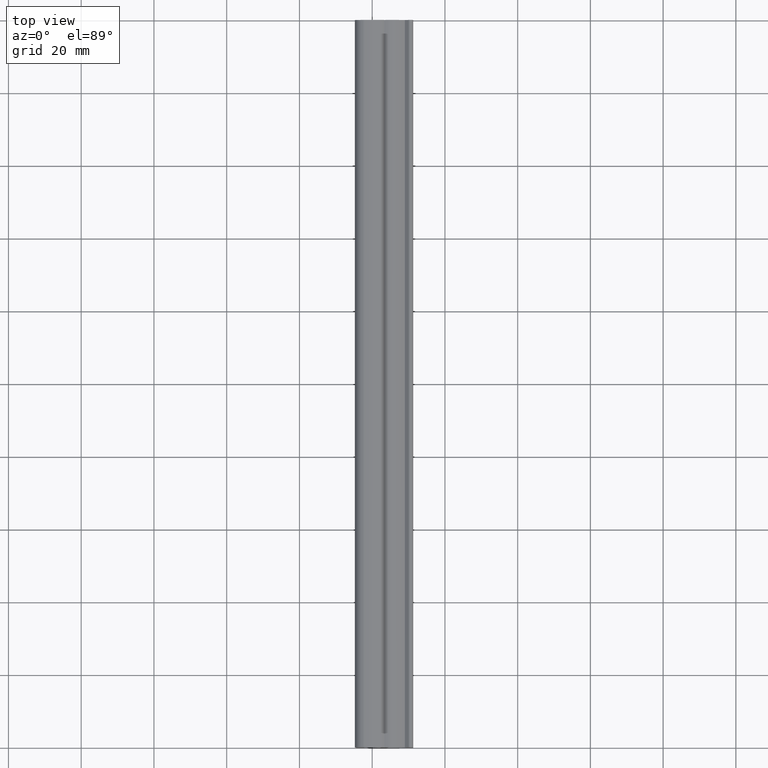
[diagram: clean part render]
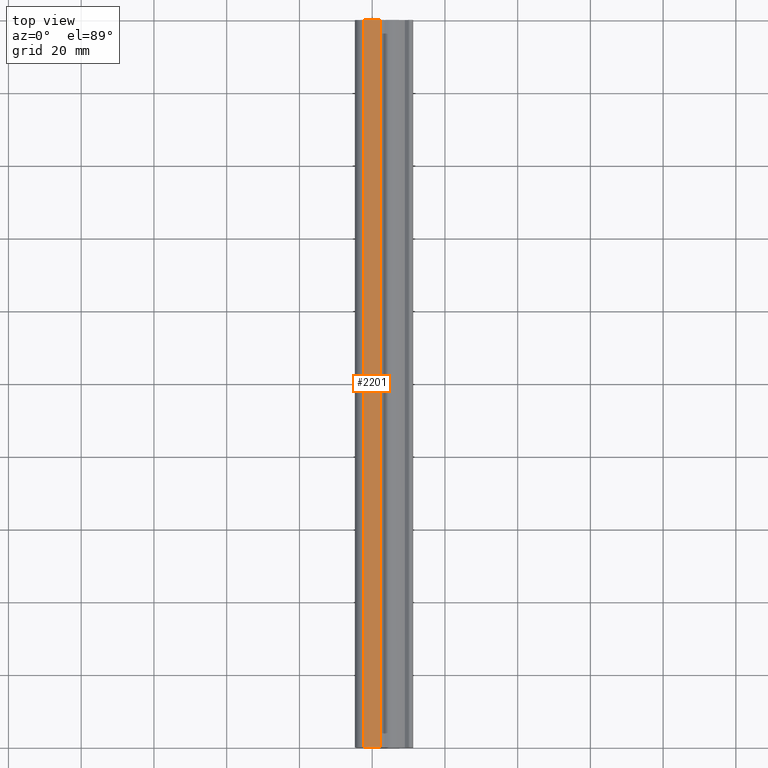
[diagram: same view with one face highlighted and labeled with its STEP entity id]
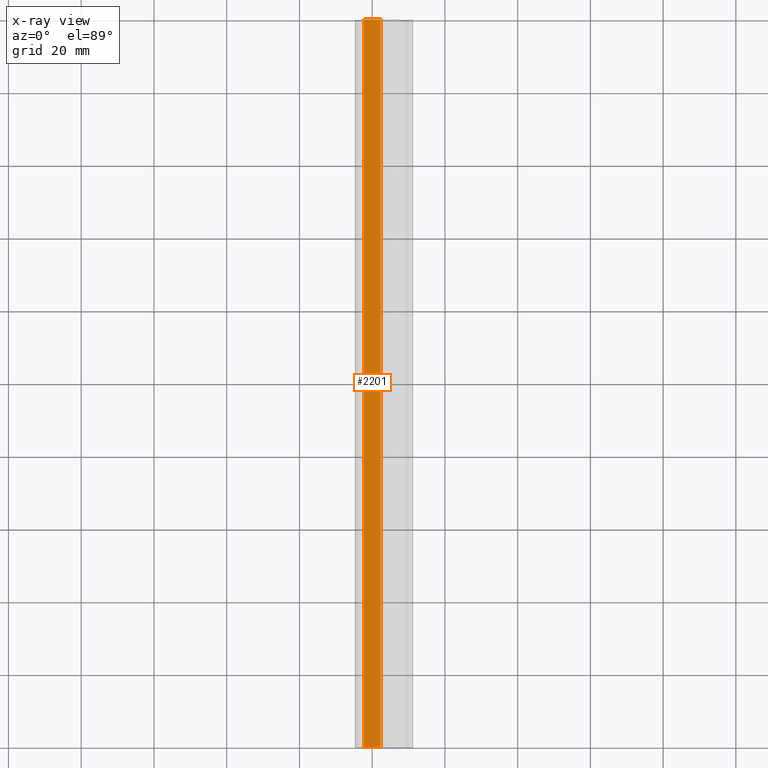
[diagram: x-ray of the same camera — body ghosted, the highlighted face saturated]
A machine part, top view. The second image highlights one B-rep face of the part: STEP entity #2201.
The next image is the same camera in x-ray: the body ghosted, the highlighted face saturated — about 0% of this face is hidden behind the body in this view.
In plain terms, the highlighted face is a freeform B-spline surface patch.
Its self-contained STEP definition (entity closure, byte-faithful):
#554=CARTESIAN_POINT('',(2.315008351885935,0.0,-0.294374045513836));
#555=VERTEX_POINT('',#554);
#569=CARTESIAN_POINT('',(-2.315043101189015,0.0,-0.294383022949744));
#570=VERTEX_POINT('',#569);
#571=CARTESIAN_POINT('',(2.315008351885935,0.0,-0.294374045513836));
#572=CARTESIAN_POINT('',(-0.000018535002492,0.0,0.304064569859302));
#573=CARTESIAN_POINT('',(-2.315043101189015,0.0,-0.294383022949744));
#581=(BOUNDED_CURVE()B_SPLINE_CURVE(2,(#571,#572,#573),.UNSPECIFIED.,.F.,.U.)CURVE()GEOMETRIC_REPRESENTATION_ITEM()QUASI_UNIFORM_CURVE()RATIONAL_B_SPLINE_CURVE((1.0,0.968174323057545,1.0))REPRESENTATION_ITEM(''));
#582=EDGE_CURVE('',#555,#570,#581,.T.);
#748=CARTESIAN_POINT('',(-2.315043101189015,200.0,-0.294383022949744));
#749=VERTEX_POINT('',#748);
#763=CARTESIAN_POINT('',(2.315008351885935,200.0,-0.294374045513836));
#764=VERTEX_POINT('',#763);
#765=CARTESIAN_POINT('',(2.315008351885940,200.0,-0.294374045513834));
#766=CARTESIAN_POINT('',(-0.000018535002492,200.0,0.304064569859302));
#767=CARTESIAN_POINT('',(-2.315043101189105,200.0,-0.294383022949398));
#775=(BOUNDED_CURVE()B_SPLINE_CURVE(2,(#765,#766,#767),.UNSPECIFIED.,.F.,.U.)CURVE()GEOMETRIC_REPRESENTATION_ITEM()QUASI_UNIFORM_CURVE()RATIONAL_B_SPLINE_CURVE((1.0,0.968174323057545,1.0))REPRESENTATION_ITEM(''));
#776=EDGE_CURVE('',#764,#749,#775,.T.);
#2169=CARTESIAN_POINT('',(2.315008351885935,200.0,-0.294374045513836));
#2170=CARTESIAN_POINT('',(2.315008351885935,0.0,-0.294374045513836));
#2171=QUASI_UNIFORM_CURVE('',1,(#2169,#2170),.UNSPECIFIED.,.F.,.U.);
#2172=EDGE_CURVE('',#764,#555,#2171,.T.);
#2177=CARTESIAN_POINT('',(-2.537581168803850,205.000000000000060,-0.354879738282745));
#2178=CARTESIAN_POINT('',(-2.537581168803850,-5.125000000000000,-0.354879738282745));
#2179=CARTESIAN_POINT('',(0.000264080340996,205.000000000000090,0.369123073676211));
#2180=CARTESIAN_POINT('',(0.000264080340996,-5.125000000000000,0.369123073676211));
#2181=CARTESIAN_POINT('',(2.538069570411738,205.0,-0.355019091163218));
#2182=CARTESIAN_POINT('',(2.538069570411738,-5.125000000000000,-0.355019091163218));
#2190=(BOUNDED_SURFACE()B_SPLINE_SURFACE(1,2,((#2177,#2179,#2181),(#2178,#2180,#2182)),.UNSPECIFIED.,.F.,.F.,.U.)B_SPLINE_SURFACE_WITH_KNOTS((2,2),(3,3),(0.0,210.125000000000000),(0.0,5.174940302524963),.UNSPECIFIED.)GEOMETRIC_REPRESENTATION_ITEM()RATIONAL_B_SPLINE_SURFACE(((0.999819516944193,0.960269298050619,0.997360268598138),(0.999819516944193,0.960269298050619,0.997360268598138)))REPRESENTATION_ITEM('')SURFACE());
#2191=ORIENTED_EDGE('',*,*,#582,.F.);
#2192=ORIENTED_EDGE('',*,*,#2172,.F.);
#2193=ORIENTED_EDGE('',*,*,#776,.T.);
#2194=CARTESIAN_POINT('',(-2.315043101189015,200.0,-0.294383022949744));
#2195=CARTESIAN_POINT('',(-2.315043101189015,0.0,-0.294383022949744));
#2196=QUASI_UNIFORM_CURVE('',1,(#2194,#2195),.UNSPECIFIED.,.F.,.U.);
#2197=EDGE_CURVE('',#749,#570,#2196,.T.);
#2198=ORIENTED_EDGE('',*,*,#2197,.T.);
#2199=EDGE_LOOP('',(#2191,#2192,#2193,#2198));
#2200=FACE_OUTER_BOUND('',#2199,.T.);
#2201=ADVANCED_FACE('',(#2200),#2190,.T.);